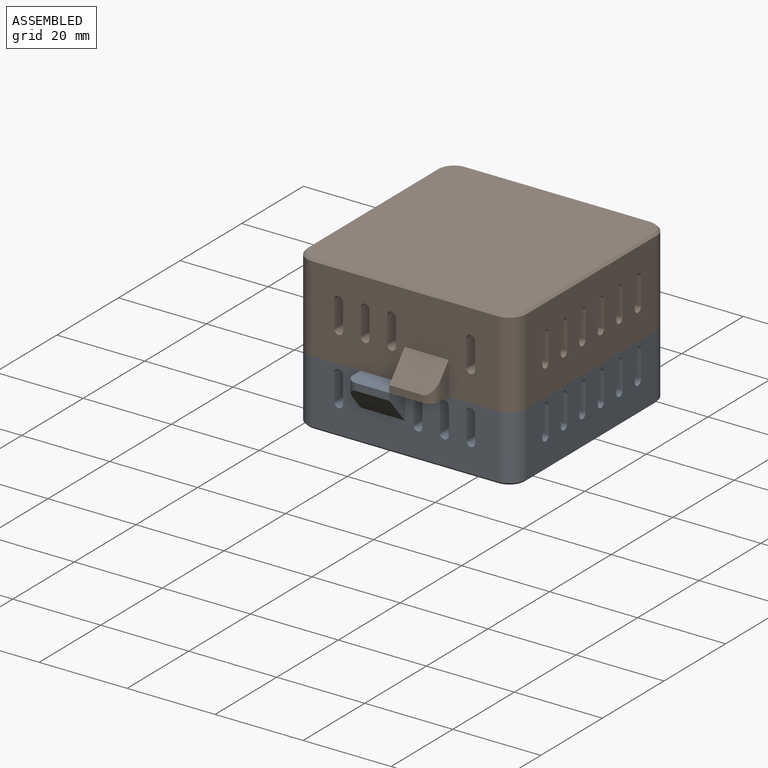
[diagram: assembled view]
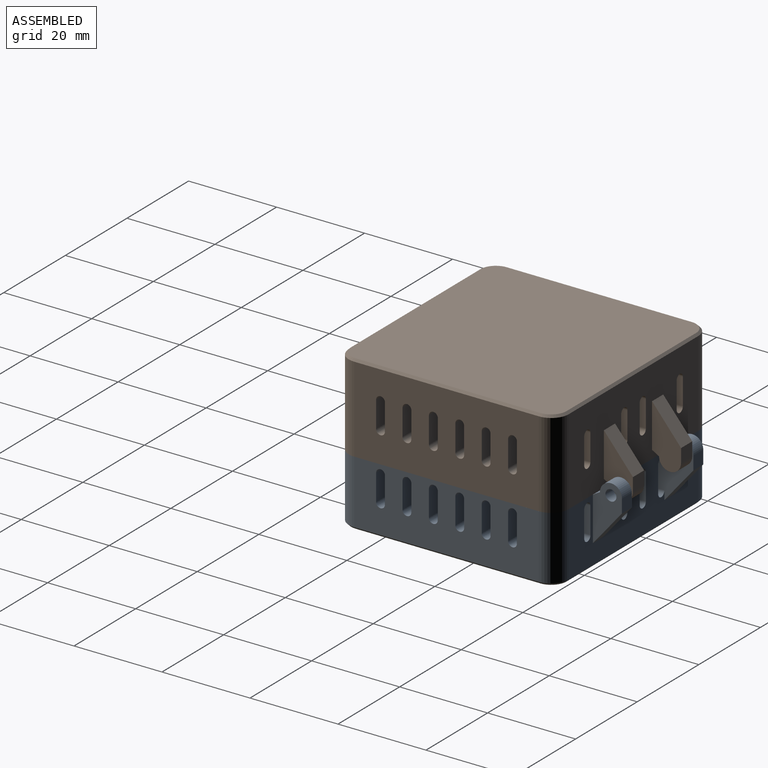
[diagram: assembled view, second angle]
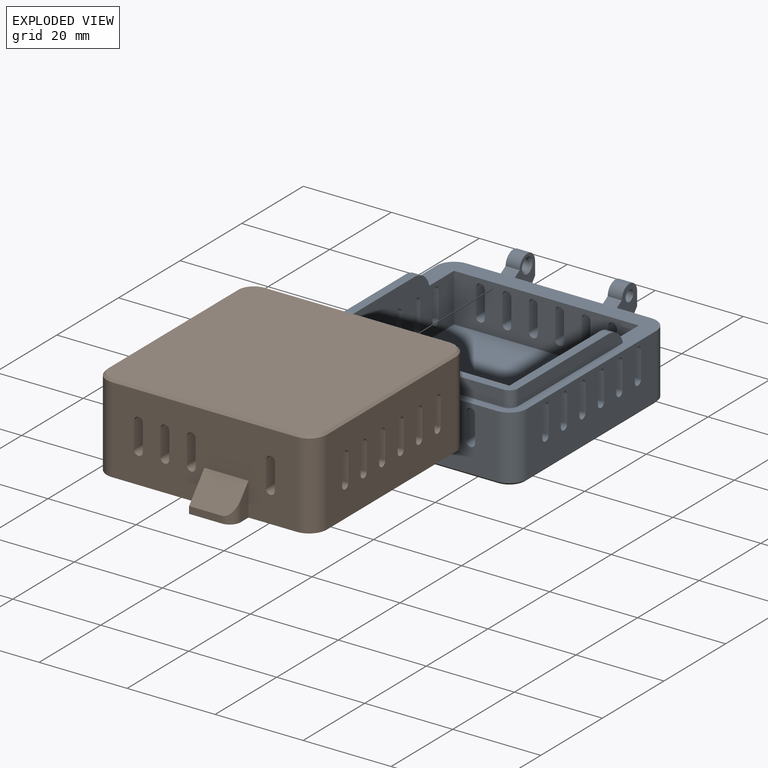
[diagram: exploded view]
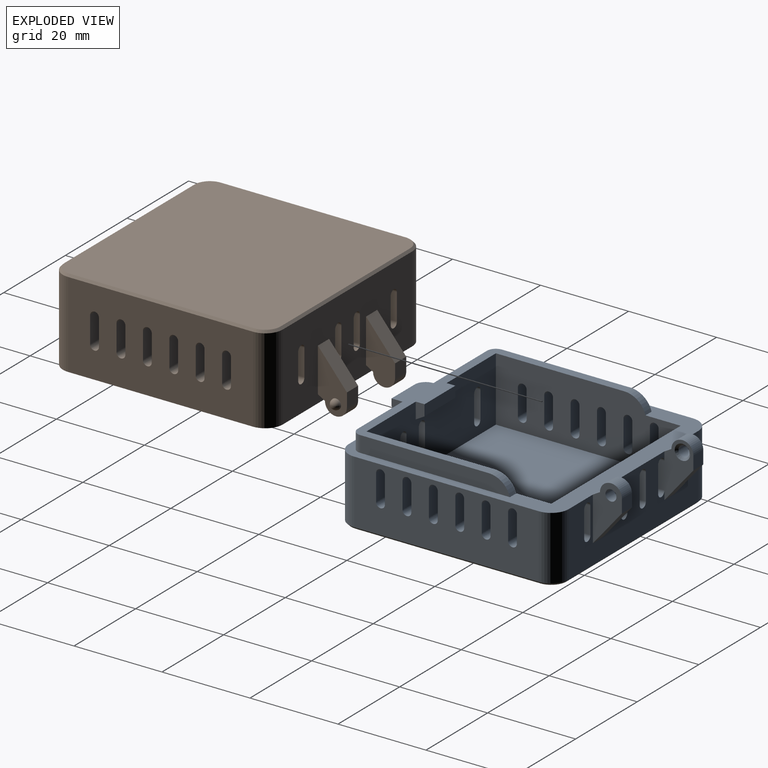
[diagram: exploded view, second angle]
ASSEMBLY  parts=2 mates=2
PART A: 146 faces, bbox 50x61.6x18.7 mm
  f0: plane 42x14.5mm, normal (0,-1,0), area 472.8mm2, adj f18,f19,f24,f25,f26,f27,f28,f29
  f1: plane 42x14.5mm, normal (0,1,0), area 454.2mm2, adj f16,f17,f40,f41,f42,f43,f44,f45
  f2: plane 34x3.65mm, normal (1,0,0), area 119.5mm2, adj f8,f113,f116,f118
  f3: plane 34x3.65mm, normal (-1,0,0), area 119.5mm2, adj f9,f113,f116,f117
  f4: plane 42x11mm, normal (0,-1,0), area 371.2mm2, adj f6,f7,f23,f40,f41,f42,f43,f44
  f5: plane 42x14.65mm, normal (0,1,0), area 518.2mm2, adj f6,f7,f11,f12,f23,f24,f25,f26
  f6: plane 42x14.65mm, normal (-1,0,0), area 490.6mm2, adj f4,f5,f23,f88,f89,f90,f91,f92
  f7: plane 42x14.65mm, normal (1,0,0), area 490.6mm2, adj f4,f5,f23,f64,f65,f66,f67,f68
  f8: cylinder r=2mm len=3.65mm, axis (0,0,1), area 11.5mm2, adj f2,f112,f113,f116
  f9: cylinder r=2mm len=3.65mm, axis (0,0,-1), area 11.5mm2, adj f3,f112,f113,f116
  f10: plane 10x2.5mm, normal (0,1,0), area 25mm2, adj f11,f12,f114,f116
  f11: plane 3.65x2mm, normal (1,0,0), area 6.1mm2, adj f5,f10,f114,f116
  f12: plane 3.65x2mm, normal (-1,0,0), area 6.1mm2, adj f5,f10,f114,f116
  f13: plane 8x1.99mm, normal (0,-0.5,-0.87), area 18.4mm2, adj f14,f15,f115,f116
  f14: plane 2.3x2mm, normal (1,0,0), area 2.3mm2, adj f13,f112,f115,f116
  f15: plane 2.3x2mm, normal (-1,0,0), area 2.3mm2, adj f13,f112,f115,f116
  f16: cylinder r=4mm len=14.5mm, axis (0,0,-1), area 91.1mm2, adj f1,f20,f113,f139
  f17: cylinder r=4mm len=14.5mm, axis (0,0,1), area 91.1mm2, adj f1,f21,f113,f143
  f18: cylinder r=4mm len=14.5mm, axis (0,0,-1), area 91.1mm2, adj f0,f21,f113,f142
  f19: cylinder r=4mm len=14.5mm, axis (0,0,1), area 91.1mm2, adj f0,f20,f113,f138
  f20: plane 42x14.5mm, normal (1,0,0), area 518.2mm2, adj f16,f19,f88,f89,f90,f91,f92,f93
  f21: plane 42x14.5mm, normal (-1,0,0), area 518.2mm2, adj f17,f18,f64,f65,f66,f67,f68,f69
  f22: plane 49x49mm, normal (0,0,-1), area 2390.5mm2, adj f137,f138,f139,f140,f141,f142,f143,f144
  f23: plane 42x42mm, normal (0,0,1), area 1764mm2, adj f4,f5,f6,f7
  f24: cylinder r=1mm len=4mm, axis (0,-1,0), area 12.6mm2, adj f0,f5,f25,f27
  f25: plane 6x4mm, normal (-1,0,0), area 24mm2, adj f0,f5,f24,f26
  f26: cylinder r=1mm len=4mm, axis (0,-1,0), area 12.6mm2, adj f0,f5,f25,f27
  f27: plane 6x4mm, normal (1,0,0), area 24mm2, adj f0,f5,f24,f26
  f28: cylinder r=1mm len=4mm, axis (0,-1,0), area 12.6mm2, adj f0,f5,f29,f31
  f29: plane 6x4mm, normal (-1,0,0), area 24mm2, adj f0,f5,f28,f30
  f30: cylinder r=1mm len=4mm, axis (0,-1,0), area 12.6mm2, adj f0,f5,f29,f31
  f31: plane 6x4mm, normal (1,0,0), area 24mm2, adj f0,f5,f28,f30
  f32: plane 6x4mm, normal (1,0,0), area 24mm2, adj f0,f5,f33,f35
  f33: cylinder r=1mm len=4mm, axis (0,-1,0), area 12.6mm2, adj f0,f5,f32,f34
  f34: plane 6x4mm, normal (-1,0,0), area 24mm2, adj f0,f5,f33,f35
  f35: cylinder r=1mm len=4mm, axis (0,-1,0), area 12.6mm2, adj f0,f5,f32,f34
  f36: cylinder r=1mm len=4mm, axis (0,-1,0), area 12.6mm2, adj f0,f5,f37,f39
  f37: plane 6x4mm, normal (-1,0,0), area 24mm2, adj f0,f5,f36,f38
  f38: cylinder r=1mm len=4mm, axis (0,-1,0), area 12.6mm2, adj f0,f5,f37,f39
  f39: plane 6x4mm, normal (1,0,0), area 24mm2, adj f0,f5,f36,f38
  f40: plane 6x4mm, normal (1,0,0), area 24mm2, adj f1,f4,f41,f43
  f41: cylinder r=1mm len=4mm, axis (0,-1,0), area 12.6mm2, adj f1,f4,f40,f42
  f42: plane 6x4mm, normal (-1,0,0), area 24mm2, adj f1,f4,f41,f43
  f43: cylinder r=1mm len=4mm, axis (0,-1,0), area 12.6mm2, adj f1,f4,f40,f42
  f44: plane 13.42x10.6mm, normal (1,0,0), area 69.6mm2, adj f1,f4,f45,f47,f125,f126,f128,f130
  f45: cylinder r=1mm len=4mm, axis (0,-1,0), area 12.6mm2, adj f1,f4,f44,f46
  f46: plane 6x4mm, normal (-1,0,0), area 24mm2, adj f1,f4,f45,f47
  f47: cylinder r=1mm len=4mm, axis (0,-1,0), area 12.6mm2, adj f1,f4,f44,f46
  f48: plane 6x4mm, normal (1,0,0), area 24mm2, adj f1,f4,f49,f51
  f49: cylinder r=1mm len=4mm, axis (0,-1,0), area 12.6mm2, adj f1,f4,f48,f50
  f50: plane 6x4mm, normal (-1,0,0), area 24mm2, adj f1,f4,f49,f51
  f51: cylinder r=1mm len=4mm, axis (0,-1,0), area 12.6mm2, adj f1,f4,f48,f50
  f52: cylinder r=1mm len=4mm, axis (0,-1,0), area 12.6mm2, adj f1,f4,f53,f55
  f53: plane 13.42x10.6mm, normal (-1,0,0), area 69.6mm2, adj f1,f4,f52,f54,f119,f120,f121,f124
  f54: cylinder r=1mm len=4mm, axis (0,-1,0), area 12.6mm2, adj f1,f4,f53,f55
  f55: plane 6x4mm, normal (1,0,0), area 24mm2, adj f1,f4,f52,f54
  f56: plane 6x4mm, normal (1,0,0), area 24mm2, adj f1,f4,f57,f59
  f57: cylinder r=1mm len=4mm, axis (0,-1,0), area 12.6mm2, adj f1,f4,f56,f58
  f58: plane 6x4mm, normal (-1,0,0), area 24mm2, adj f1,f4,f57,f59
  f59: cylinder r=1mm len=4mm, axis (0,-1,0), area 12.6mm2, adj f1,f4,f56,f58
  f60: plane 6x4mm, normal (1,0,0), area 24mm2, adj f1,f4,f61,f63
  f61: cylinder r=1mm len=4mm, axis (0,-1,0), area 12.6mm2, adj f1,f4,f60,f62
  f62: plane 6x4mm, normal (-1,0,0), area 24mm2, adj f1,f4,f61,f63
  f63: cylinder r=1mm len=4mm, axis (0,-1,0), area 12.6mm2, adj f1,f4,f60,f62
  f64: plane 6x4mm, normal (0,1,0), area 24mm2, adj f7,f21,f65,f67
  f65: cylinder r=1mm len=4mm, axis (1,0,0), area 12.6mm2, adj f7,f21,f64,f66
  f66: plane 6x4mm, normal (0,-1,0), area 24mm2, adj f7,f21,f65,f67
  f67: cylinder r=1mm len=4mm, axis (1,0,0), area 12.6mm2, adj f7,f21,f64,f66
  f68: plane 6x4mm, normal (0,1,0), area 24mm2, adj f7,f21,f69,f71
  f69: cylinder r=1mm len=4mm, axis (1,0,0), area 12.6mm2, adj f7,f21,f68,f70
  f70: plane 6x4mm, normal (0,-1,0), area 24mm2, adj f7,f21,f69,f71
  f71: cylinder r=1mm len=4mm, axis (1,0,0), area 12.6mm2, adj f7,f21,f68,f70
  f72: plane 6x4mm, normal (0,-1,0), area 24mm2, adj f7,f21,f73,f75
  f73: cylinder r=1mm len=4mm, axis (1,0,0), area 12.6mm2, adj f7,f21,f72,f74
  f74: plane 6x4mm, normal (0,1,0), area 24mm2, adj f7,f21,f73,f75
  f75: cylinder r=1mm len=4mm, axis (1,0,0), area 12.6mm2, adj f7,f21,f72,f74
  f76: plane 6x4mm, normal (0,-1,0), area 24mm2, adj f7,f21,f77,f79
  f77: cylinder r=1mm len=4mm, axis (1,0,0), area 12.6mm2, adj f7,f21,f76,f78
  f78: plane 6x4mm, normal (0,1,0), area 24mm2, adj f7,f21,f77,f79
  f79: cylinder r=1mm len=4mm, axis (1,0,0), area 12.6mm2, adj f7,f21,f76,f78
  f80: plane 6x4mm, normal (0,1,0), area 24mm2, adj f7,f21,f81,f83
  f81: cylinder r=1mm len=4mm, axis (1,0,0), area 12.6mm2, adj f7,f21,f80,f82
  f82: plane 6x4mm, normal (0,-1,0), area 24mm2, adj f7,f21,f81,f83
  f83: cylinder r=1mm len=4mm, axis (1,0,0), area 12.6mm2, adj f7,f21,f80,f82
  f84: plane 6x4mm, normal (0,-1,0), area 24mm2, adj f7,f21,f85,f87
  f85: cylinder r=1mm len=4mm, axis (1,0,0), area 12.6mm2, adj f7,f21,f84,f86
  f86: plane 6x4mm, normal (0,1,0), area 24mm2, adj f7,f21,f85,f87
  f87: cylinder r=1mm len=4mm, axis (1,0,0), area 12.6mm2, adj f7,f21,f84,f86
  f88: cylinder r=1mm len=4mm, axis (1,0,0), area 12.6mm2, adj f6,f20,f89,f91
  f89: plane 6x4mm, normal (0,-1,0), area 24mm2, adj f6,f20,f88,f90
  f90: cylinder r=1mm len=4mm, axis (1,0,0), area 12.6mm2, adj f6,f20,f89,f91
  f91: plane 6x4mm, normal (0,1,0), area 24mm2, adj f6,f20,f88,f90
  f92: cylinder r=1mm len=4mm, axis (1,0,0), area 12.6mm2, adj f6,f20,f93,f95
  f93: plane 6x4mm, normal (0,-1,0), area 24mm2, adj f6,f20,f92,f94
  f94: cylinder r=1mm len=4mm, axis (1,0,0), area 12.6mm2, adj f6,f20,f93,f95
  f95: plane 6x4mm, normal (0,1,0), area 24mm2, adj f6,f20,f92,f94
  f96: cylinder r=1mm len=4mm, axis (1,0,0), area 12.6mm2, adj f6,f20,f97,f99
  f97: plane 6x4mm, normal (0,1,0), area 24mm2, adj f6,f20,f96,f98
  f98: cylinder r=1mm len=4mm, axis (1,0,0), area 12.6mm2, adj f6,f20,f97,f99
  f99: plane 6x4mm, normal (0,-1,0), area 24mm2, adj f6,f20,f96,f98
  f100: cylinder r=1mm len=4mm, axis (1,0,0), area 12.6mm2, adj f6,f20,f101,f103
  f101: plane 6x4mm, normal (0,1,0), area 24mm2, adj f6,f20,f100,f102
  f102: cylinder r=1mm len=4mm, axis (1,0,0), area 12.6mm2, adj f6,f20,f101,f103
  f103: plane 6x4mm, normal (0,-1,0), area 24mm2, adj f6,f20,f100,f102
  f104: cylinder r=1mm len=4mm, axis (1,0,0), area 12.6mm2, adj f6,f20,f105,f107
  f105: plane 6x4mm, normal (0,-1,0), area 24mm2, adj f6,f20,f104,f106
  f106: cylinder r=1mm len=4mm, axis (1,0,0), area 12.6mm2, adj f6,f20,f105,f107
  f107: plane 6x4mm, normal (0,1,0), area 24mm2, adj f6,f20,f104,f106
  f108: cylinder r=1mm len=4mm, axis (1,0,0), area 12.6mm2, adj f6,f20,f109,f111
  f109: plane 6x4mm, normal (0,1,0), area 24mm2, adj f6,f20,f108,f110
  f110: cylinder r=1mm len=4mm, axis (1,0,0), area 12.6mm2, adj f6,f20,f109,f111
  f111: plane 6x4mm, normal (0,-1,0), area 24mm2, adj f6,f20,f108,f110
  f112: plane 42x3.65mm, normal (0,-1,0), area 134.9mm2, adj f8,f9,f14,f15,f113,f115,f116
  f113: plane 55x50mm, normal (0,0,1), area 544.6mm2, adj f0,f1,f2,f3,f4,f6,f7,f8
  f114: plane 10x2mm, normal (0,0.5,-0.87), area 23.1mm2, adj f5,f10,f11,f12
  f115: plane 8x2mm, normal (0,-0.5,0.87), area 18.5mm2, adj f13,f14,f15,f112
  f116: plane 46x31.19mm, normal (0,0,1), area 227mm2, adj f2,f3,f5,f6,f7,f8,f9,f10
  f117: cylinder r=5mm len=4.81mm, axis (-1,0,0), area 13mm2, adj f3,f7,f113,f116
  f118: cylinder r=5mm len=4.81mm, axis (-1,0,0), area 13mm2, adj f2,f6,f113,f116
  f119: plane 3.2x1.6mm, normal (0,-0.5,0.87), area 5.9mm2, adj f53,f113,f123,f124
  f120: plane 7.87x6.6mm, normal (0,0.77,-0.64), area 32.9mm2, adj f1,f53,f121,f123
  f121: plane 3.2x3.06mm, normal (0,1,0), area 9.8mm2, adj f53,f120,f123,f124
  f122: cylinder r=1.25mm len=2.7mm, axis (-1,0,0), area 21.2mm2, adj f123,f136
  f123: plane 13.42x6.6mm, normal (1,0,0), area 50.3mm2, adj f1,f119,f120,f121,f122,f124
  f124: cylinder r=2.5mm len=5mm, axis (-1,0,0), area 25.1mm2, adj f53,f119,f121,f123
  f125: plane 3.2x3.06mm, normal (0,1,0), area 9.8mm2, adj f44,f126,f129,f130
  f126: plane 7.87x6.6mm, normal (0,0.77,-0.64), area 32.9mm2, adj f1,f44,f125,f129
  f127: cylinder r=1.25mm len=2.7mm, axis (1,0,0), area 21.2mm2, adj f129,f135
  f128: plane 3.2x1.6mm, normal (0,-0.5,0.87), area 5.9mm2, adj f44,f113,f129,f130
  f129: plane 13.42x6.6mm, normal (-1,0,0), area 50.3mm2, adj f1,f125,f126,f127,f128,f130
  f130: cylinder r=2.5mm len=5mm, axis (1,0,0), area 25.1mm2, adj f44,f125,f128,f129
  f131: plane 7.5x1.6mm, normal (0,-1,0), area 12mm2, adj f113,f132,f134,f145
  f132: plane 10x5.96mm, normal (0,-0.77,-0.64), area 75.7mm2, adj f0,f131,f133,f134,f145
  f133: plane 7.56x2.5mm, normal (-1,0,0), area 15.2mm2, adj f0,f113,f132,f145
  f134: plane 7.56x5mm, normal (1,0,0), area 22.9mm2, adj f0,f113,f131,f132
  f135: cone r=1.25mm half-angle=45deg, axis (1,0,0), area 6.7mm2, adj f44,f127
  f136: cone r=1.75mm half-angle=45deg, axis (-1,0,0), area 6.7mm2, adj f53,f122
  f137: plane 42x0.5mm, normal (0.71,0,-0.71), area 29.7mm2, adj f20,f22,f138,f139
  f138: cone r=3.5mm half-angle=45deg, axis (0,0,1), area 4.2mm2, adj f19,f22,f137,f140
  f139: cone r=3.5mm half-angle=45deg, axis (0,0,1), area 4.2mm2, adj f16,f22,f137,f141
  f140: plane 42x0.5mm, normal (0,-0.71,-0.71), area 29.7mm2, adj f0,f22,f138,f142
  f141: plane 42x0.5mm, normal (0,0.71,-0.71), area 29.7mm2, adj f1,f22,f139,f143
  f142: cone r=3.5mm half-angle=45deg, axis (0,0,1), area 4.2mm2, adj f18,f22,f140,f144
  f143: cone r=3.5mm half-angle=45deg, axis (0,0,1), area 4.2mm2, adj f17,f22,f141,f144
  f144: plane 42x0.5mm, normal (-0.71,0,-0.71), area 29.7mm2, adj f21,f22,f142,f143
  f145: cylinder r=2.5mm len=4.58mm, axis (0,0,1), area 10.5mm2, adj f113,f131,f132,f133
PART B: 135 faces, bbox 50x61.6x21.6 mm
  f0: plane 42x19.5mm, normal (0,-1,0), area 682.8mm2, adj f10,f17,f18,f19,f20,f21,f22,f23
  f1: plane 3.63x1.6mm, normal (0,-0.5,0.87), area 6.7mm2, adj f4,f5,f115,f120
  f2: plane 7.87x6.6mm, normal (0,0.77,-0.64), area 37.2mm2, adj f3,f5,f115,f120
  f3: plane 3.63x3.06mm, normal (0,1,0), area 11.1mm2, adj f2,f4,f115,f120
  f4: cylinder r=2.5mm len=5mm, axis (-1,0,0), area 28.5mm2, adj f1,f3,f115,f120
  f5: plane 42x19.5mm, normal (0,1,0), area 685.9mm2, adj f1,f2,f10,f15,f16,f35,f36,f37
  f6: plane 42x11mm, normal (-1,0,0), area 371.2mm2, adj f8,f9,f14,f75,f76,f77,f78,f79
  f7: plane 42x11mm, normal (1,0,0), area 371.2mm2, adj f8,f9,f14,f51,f52,f53,f54,f55
  f8: plane 42x11mm, normal (0,-1,0), area 401.4mm2, adj f6,f7,f14,f35,f36,f37,f38,f39
  f9: plane 42x11mm, normal (0,1,0), area 401.4mm2, adj f6,f7,f14,f19,f20,f21,f22,f23
  f10: plane 55x50mm, normal (0,0,1), area 365.8mm2, adj f0,f5,f11,f12,f15,f16,f17,f18
  f11: plane 42x19.5mm, normal (1,0,0), area 728.2mm2, adj f10,f15,f18,f75,f76,f77,f78,f79
  f12: plane 42x19.5mm, normal (-1,0,0), area 728.2mm2, adj f10,f16,f17,f51,f52,f53,f54,f55
  f13: plane 49x49mm, normal (0,0,-1), area 2390.5mm2, adj f126,f127,f128,f129,f130,f131,f132,f133
  f14: plane 42x42mm, normal (0,0,1), area 1764mm2, adj f6,f7,f8,f9
  f15: cylinder r=4mm len=19.5mm, axis (0,0,-1), area 122.5mm2, adj f5,f10,f11,f128
  f16: cylinder r=4mm len=19.5mm, axis (0,0,1), area 122.5mm2, adj f5,f10,f12,f132
  f17: cylinder r=4mm len=19.5mm, axis (0,0,-1), area 122.5mm2, adj f0,f10,f12,f131
  f18: cylinder r=4mm len=19.5mm, axis (0,0,1), area 122.5mm2, adj f0,f10,f11,f127
  f19: cylinder r=1mm len=4mm, axis (0,-1,0), area 12.6mm2, adj f0,f9,f20,f22
  f20: plane 6x4mm, normal (-1,0,0), area 24mm2, adj f0,f9,f19,f21
  f21: cylinder r=1mm len=4mm, axis (0,-1,0), area 12.6mm2, adj f0,f9,f20,f22
  f22: plane 6x4mm, normal (1,0,0), area 24mm2, adj f0,f9,f19,f21
  f23: cylinder r=1mm len=4mm, axis (0,-1,0), area 12.6mm2, adj f0,f9,f24,f26
  f24: plane 6x4mm, normal (-1,0,0), area 24mm2, adj f0,f9,f23,f25
  f25: cylinder r=1mm len=4mm, axis (0,-1,0), area 12.6mm2, adj f0,f9,f24,f26
  f26: plane 6x4mm, normal (1,0,0), area 24mm2, adj f0,f9,f23,f25
  f27: plane 6x4mm, normal (1,0,0), area 24mm2, adj f0,f9,f28,f30
  f28: cylinder r=1mm len=4mm, axis (0,-1,0), area 12.6mm2, adj f0,f9,f27,f29
  f29: plane 6x4mm, normal (-1,0,0), area 24mm2, adj f0,f9,f28,f30
  f30: cylinder r=1mm len=4mm, axis (0,-1,0), area 12.6mm2, adj f0,f9,f27,f29
  f31: cylinder r=1mm len=4mm, axis (0,-1,0), area 12.6mm2, adj f0,f9,f32,f34
  f32: plane 6x4mm, normal (-1,0,0), area 24mm2, adj f0,f9,f31,f33
  f33: cylinder r=1mm len=4mm, axis (0,-1,0), area 12.6mm2, adj f0,f9,f32,f34
  f34: plane 6x4mm, normal (1,0,0), area 24mm2, adj f0,f9,f31,f33
  f35: plane 6x4mm, normal (1,0,0), area 24mm2, adj f5,f8,f36,f38
  f36: cylinder r=1mm len=4mm, axis (0,-1,0), area 12.6mm2, adj f5,f8,f35,f37
  f37: plane 6x4mm, normal (-1,0,0), area 24mm2, adj f5,f8,f36,f38
  f38: cylinder r=1mm len=4mm, axis (0,-1,0), area 12.6mm2, adj f5,f8,f35,f37
  f39: plane 6x4mm, normal (1,0,0), area 24mm2, adj f5,f8,f40,f42
  f40: cylinder r=1mm len=4mm, axis (0,-1,0), area 12.6mm2, adj f5,f8,f39,f41
  f41: plane 6x4mm, normal (-1,0,0), area 24mm2, adj f5,f8,f40,f42
  f42: cylinder r=1mm len=4mm, axis (0,-1,0), area 12.6mm2, adj f5,f8,f39,f41
  f43: plane 6x4mm, normal (1,0,0), area 24mm2, adj f5,f8,f44,f46
  f44: cylinder r=1mm len=4mm, axis (0,-1,0), area 12.6mm2, adj f5,f8,f43,f45
  f45: plane 6x4mm, normal (-1,0,0), area 24mm2, adj f5,f8,f44,f46
  f46: cylinder r=1mm len=4mm, axis (0,-1,0), area 12.6mm2, adj f5,f8,f43,f45
  f47: plane 6x4mm, normal (1,0,0), area 24mm2, adj f5,f8,f48,f50
  f48: cylinder r=1mm len=4mm, axis (0,-1,0), area 12.6mm2, adj f5,f8,f47,f49
  f49: plane 6x4mm, normal (-1,0,0), area 24mm2, adj f5,f8,f48,f50
  f50: cylinder r=1mm len=4mm, axis (0,-1,0), area 12.6mm2, adj f5,f8,f47,f49
  f51: plane 6x4mm, normal (0,1,0), area 24mm2, adj f7,f12,f52,f54
  f52: cylinder r=1mm len=4mm, axis (1,0,0), area 12.6mm2, adj f7,f12,f51,f53
  f53: plane 6x4mm, normal (0,-1,0), area 24mm2, adj f7,f12,f52,f54
  f54: cylinder r=1mm len=4mm, axis (1,0,0), area 12.6mm2, adj f7,f12,f51,f53
  f55: plane 6x4mm, normal (0,1,0), area 24mm2, adj f7,f12,f56,f58
  f56: cylinder r=1mm len=4mm, axis (1,0,0), area 12.6mm2, adj f7,f12,f55,f57
  f57: plane 6x4mm, normal (0,-1,0), area 24mm2, adj f7,f12,f56,f58
  f58: cylinder r=1mm len=4mm, axis (1,0,0), area 12.6mm2, adj f7,f12,f55,f57
  f59: plane 6x4mm, normal (0,-1,0), area 24mm2, adj f7,f12,f60,f62
  f60: cylinder r=1mm len=4mm, axis (1,0,0), area 12.6mm2, adj f7,f12,f59,f61
  f61: plane 6x4mm, normal (0,1,0), area 24mm2, adj f7,f12,f60,f62
  f62: cylinder r=1mm len=4mm, axis (1,0,0), area 12.6mm2, adj f7,f12,f59,f61
  f63: plane 6x4mm, normal (0,-1,0), area 24mm2, adj f7,f12,f64,f66
  f64: cylinder r=1mm len=4mm, axis (1,0,0), area 12.6mm2, adj f7,f12,f63,f65
  f65: plane 6x4mm, normal (0,1,0), area 24mm2, adj f7,f12,f64,f66
  f66: cylinder r=1mm len=4mm, axis (1,0,0), area 12.6mm2, adj f7,f12,f63,f65
  f67: plane 6x4mm, normal (0,1,0), area 24mm2, adj f7,f12,f68,f70
  f68: cylinder r=1mm len=4mm, axis (1,0,0), area 12.6mm2, adj f7,f12,f67,f69
  f69: plane 6x4mm, normal (0,-1,0), area 24mm2, adj f7,f12,f68,f70
  f70: cylinder r=1mm len=4mm, axis (1,0,0), area 12.6mm2, adj f7,f12,f67,f69
  f71: plane 6x4mm, normal (0,-1,0), area 24mm2, adj f7,f12,f72,f74
  f72: cylinder r=1mm len=4mm, axis (1,0,0), area 12.6mm2, adj f7,f12,f71,f73
  f73: plane 6x4mm, normal (0,1,0), area 24mm2, adj f7,f12,f72,f74
  f74: cylinder r=1mm len=4mm, axis (1,0,0), area 12.6mm2, adj f7,f12,f71,f73
  f75: cylinder r=1mm len=4mm, axis (1,0,0), area 12.6mm2, adj f6,f11,f76,f78
  f76: plane 6x4mm, normal (0,-1,0), area 24mm2, adj f6,f11,f75,f77
  f77: cylinder r=1mm len=4mm, axis (1,0,0), area 12.6mm2, adj f6,f11,f76,f78
  f78: plane 6x4mm, normal (0,1,0), area 24mm2, adj f6,f11,f75,f77
  f79: cylinder r=1mm len=4mm, axis (1,0,0), area 12.6mm2, adj f6,f11,f80,f82
  f80: plane 6x4mm, normal (0,-1,0), area 24mm2, adj f6,f11,f79,f81
  f81: cylinder r=1mm len=4mm, axis (1,0,0), area 12.6mm2, adj f6,f11,f80,f82
  f82: plane 6x4mm, normal (0,1,0), area 24mm2, adj f6,f11,f79,f81
  f83: cylinder r=1mm len=4mm, axis (1,0,0), area 12.6mm2, adj f6,f11,f84,f86
  f84: plane 6x4mm, normal (0,1,0), area 24mm2, adj f6,f11,f83,f85
  f85: cylinder r=1mm len=4mm, axis (1,0,0), area 12.6mm2, adj f6,f11,f84,f86
  f86: plane 6x4mm, normal (0,-1,0), area 24mm2, adj f6,f11,f83,f85
  f87: cylinder r=1mm len=4mm, axis (1,0,0), area 12.6mm2, adj f6,f11,f88,f90
  f88: plane 6x4mm, normal (0,1,0), area 24mm2, adj f6,f11,f87,f89
  f89: cylinder r=1mm len=4mm, axis (1,0,0), area 12.6mm2, adj f6,f11,f88,f90
  f90: plane 6x4mm, normal (0,-1,0), area 24mm2, adj f6,f11,f87,f89
  f91: cylinder r=1mm len=4mm, axis (1,0,0), area 12.6mm2, adj f6,f11,f92,f94
  f92: plane 6x4mm, normal (0,-1,0), area 24mm2, adj f6,f11,f91,f93
  f93: cylinder r=1mm len=4mm, axis (1,0,0), area 12.6mm2, adj f6,f11,f92,f94
  f94: plane 6x4mm, normal (0,1,0), area 24mm2, adj f6,f11,f91,f93
  f95: cylinder r=1mm len=4mm, axis (1,0,0), area 12.6mm2, adj f6,f11,f96,f98
  f96: plane 6x4mm, normal (0,1,0), area 24mm2, adj f6,f11,f95,f97
  f97: cylinder r=1mm len=4mm, axis (1,0,0), area 12.6mm2, adj f6,f11,f96,f98
  f98: plane 6x4mm, normal (0,-1,0), area 24mm2, adj f6,f11,f95,f97
  f99: plane 43.2x5mm, normal (0,1,0), area 203.3mm2, adj f10,f103,f104,f107,f108,f109,f110,f111
  f100: plane 43.2x5mm, normal (-1,0,0), area 216mm2, adj f10,f103,f104,f105
  f101: plane 43.2x5mm, normal (0,-1,0), area 216mm2, adj f10,f103,f105,f106
  f102: plane 43.2x5mm, normal (1,0,0), area 216mm2, adj f10,f103,f106,f107
  f103: plane 46.6x46.6mm, normal (0,0,1), area 405.1mm2, adj f6,f7,f8,f9,f99,f100,f101,f102
  f104: cylinder r=1.7mm len=5mm, axis (0,0,-1), area 13.4mm2, adj f10,f99,f100,f103
  f105: cylinder r=1.7mm len=5mm, axis (0,0,1), area 13.4mm2, adj f10,f100,f101,f103
  f106: cylinder r=1.7mm len=5mm, axis (0,0,-1), area 13.4mm2, adj f10,f101,f102,f103
  f107: cylinder r=1.7mm len=5mm, axis (0,0,1), area 13.4mm2, adj f10,f99,f102,f103
  f108: plane 7.35x1.5mm, normal (0,0.5,-0.87), area 12.7mm2, adj f99,f109,f110,f111
  f109: plane 7.35x1.5mm, normal (0,0.5,0.87), area 12.7mm2, adj f99,f108,f110,f111
  f110: plane 1.73x1.5mm, normal (-1,0,0), area 1.3mm2, adj f99,f108,f109
  f111: plane 1.73x1.5mm, normal (1,0,0), area 1.3mm2, adj f99,f108,f109
  f112: plane 3.63x1.6mm, normal (0,-0.5,0.87), area 6.7mm2, adj f5,f116,f117,f121
  f113: plane 7.87x6.6mm, normal (0,0.77,-0.64), area 37.2mm2, adj f5,f114,f116,f121
  f114: plane 3.63x3.06mm, normal (0,1,0), area 11.1mm2, adj f113,f116,f117,f121
  f115: plane 13.42x6.6mm, normal (1,0,0), area 51mm2, adj f1,f2,f3,f4,f5,f118
  f116: plane 13.42x6.6mm, normal (-1,0,0), area 51mm2, adj f5,f112,f113,f114,f117,f119
  f117: cylinder r=2.5mm len=5mm, axis (-1,0,0), area 28.5mm2, adj f112,f114,f116,f121
  f118: sphere r=1.16mm, area 8.5mm2, adj f115
  f119: sphere r=1.16mm, area 8.5mm2, adj f116
  f120: plane 13.42x6.6mm, normal (-1,0,0), area 55.2mm2, adj f1,f2,f3,f4,f5
  f121: plane 13.42x6.6mm, normal (1,0,0), area 55.2mm2, adj f5,f112,f113,f114,f117
  f122: plane 10x5.96mm, normal (0,-0.77,-0.64), area 75.7mm2, adj f0,f123,f124,f125,f134
  f123: plane 7.5x1.6mm, normal (0,-1,0), area 12mm2, adj f10,f122,f125,f134
  f124: plane 7.56x2.5mm, normal (-1,0,0), area 15.2mm2, adj f0,f10,f122,f134
  f125: plane 7.56x5mm, normal (1,0,0), area 22.9mm2, adj f0,f10,f122,f123
  f126: plane 42x0.5mm, normal (0.71,0,-0.71), area 29.7mm2, adj f11,f13,f127,f128
  f127: cone r=3.5mm half-angle=45deg, axis (0,0,1), area 4.2mm2, adj f13,f18,f126,f129
  f128: cone r=3.5mm half-angle=45deg, axis (0,0,1), area 4.2mm2, adj f13,f15,f126,f130
  f129: plane 42x0.5mm, normal (0,-0.71,-0.71), area 29.7mm2, adj f0,f13,f127,f131
  f130: plane 42x0.5mm, normal (0,0.71,-0.71), area 29.7mm2, adj f5,f13,f128,f132
  f131: cone r=3.5mm half-angle=45deg, axis (0,0,1), area 4.2mm2, adj f13,f17,f129,f133
  f132: cone r=3.5mm half-angle=45deg, axis (0,0,1), area 4.2mm2, adj f13,f16,f130,f133
  f133: plane 42x0.5mm, normal (-0.71,0,-0.71), area 29.7mm2, adj f12,f13,f131,f132
  f134: cylinder r=2.5mm len=4.58mm, axis (0,0,1), area 10.5mm2, adj f10,f122,f123,f124
PLACE A t=(-14.6,-4.05,2.19)mm fixed
PLACE B rot(axis=(0,1,0),180deg) t=(-14.6,-4.05,37.19)mm
MATE planar B.f0 <-> A.f0  axis (0,-1,0) through (1.4,-29.05,30.19)mm
MATE planar A.f113 <-> B.f10  axis (0,0,1) through (-15.03,-1.86,17.19)mm
